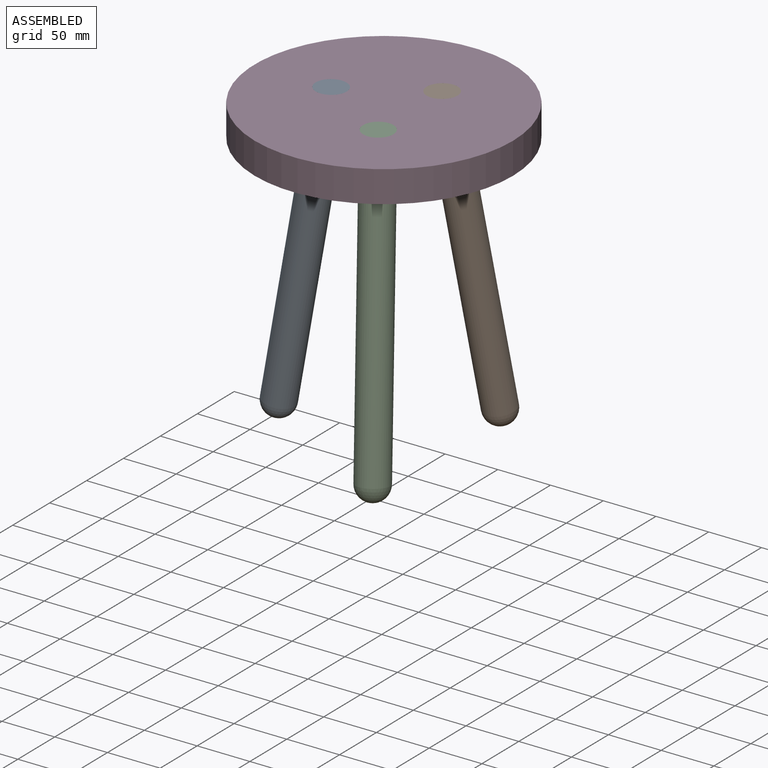
[diagram: assembled view]
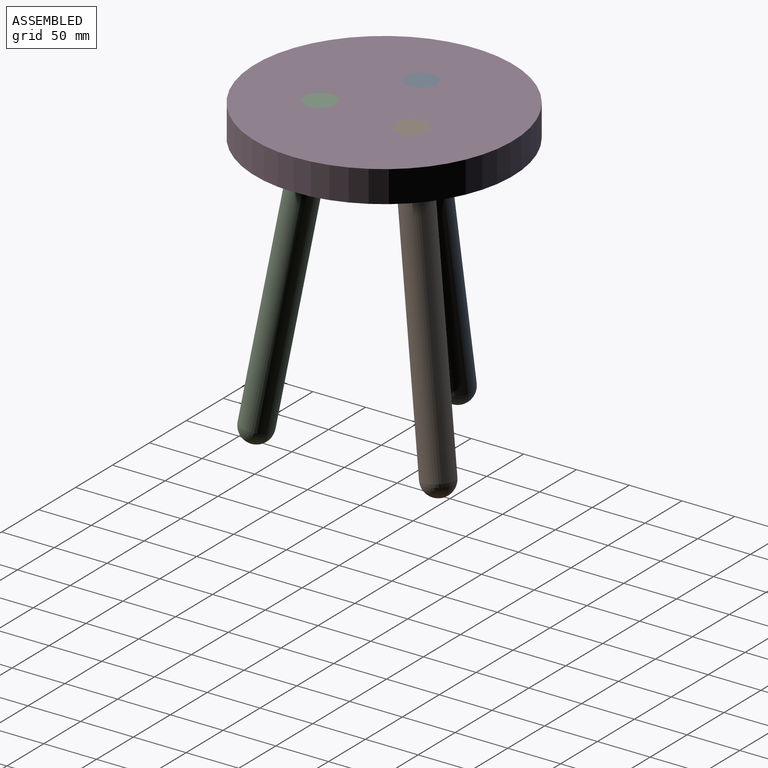
[diagram: assembled view, second angle]
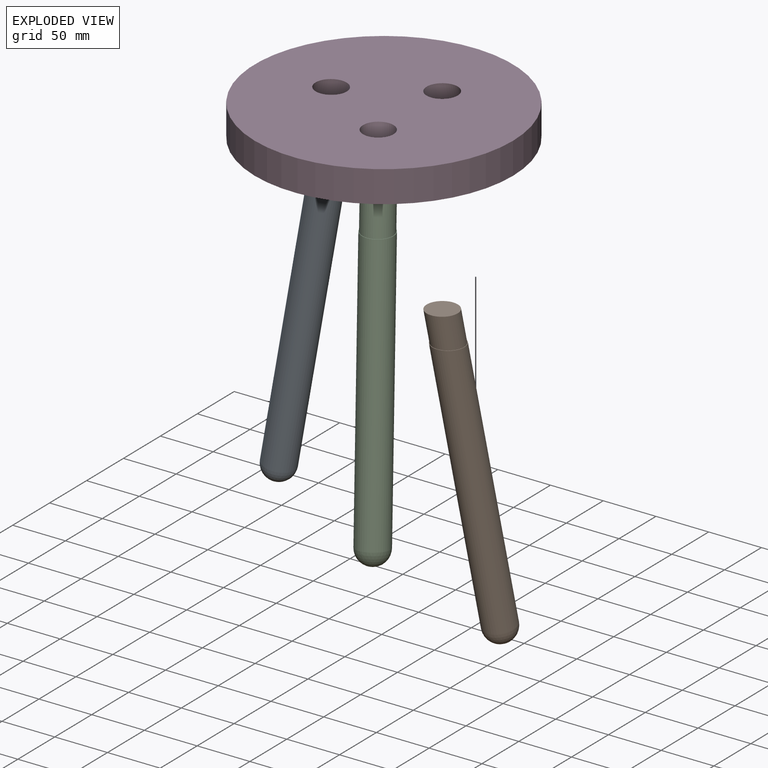
[diagram: exploded view]
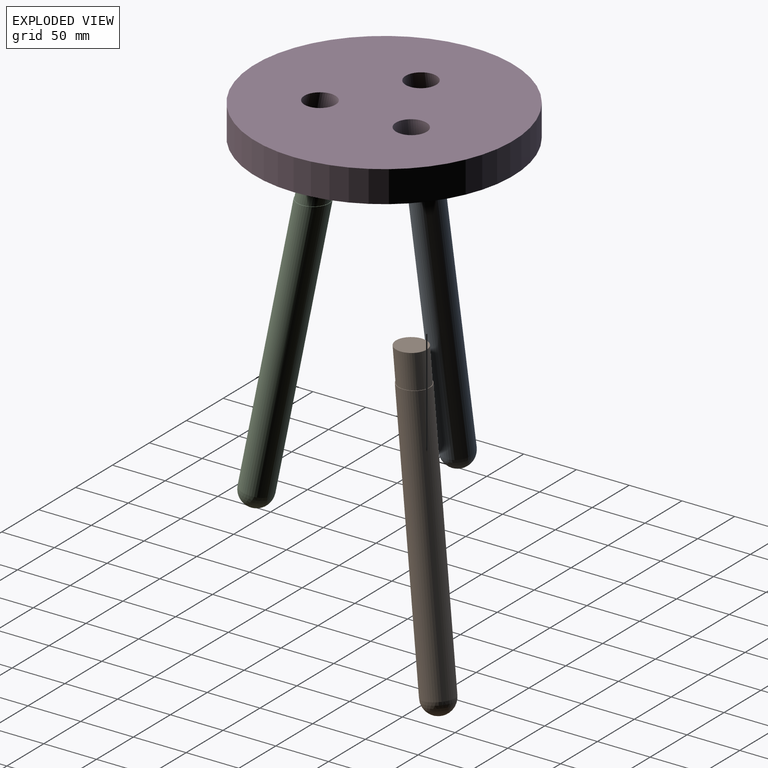
[diagram: exploded view, second angle]
ASSEMBLY  parts=4 mates=3
PART A: 5 faces, bbox 79.2x30x300.7 mm
  f0: cylinder r=14.5mm len=40.11mm, axis (0.17,0,0.98), area 2775.3mm2, adj f1,f2
  f1: plane 29.45x29mm, normal (0,0,1), area 670.7mm2, adj f0
  f2: plane 30.46x30mm, normal (0,0,1), area 47.1mm2, adj f0,f3
  f3: cylinder r=15mm len=258.49mm, axis (0.17,0,0.98), area 23989.6mm2, adj f2,f4
  f4: sphere r=15mm, area 1413.7mm2, adj f3
PART B: 5 faces, bbox 54.4x72.6x300.7 mm
  f0: cylinder r=14.5mm len=40.11mm, axis (-0.09,-0.15,0.98), area 2775.3mm2, adj f1,f2
  f1: plane 29.34x29.11mm, normal (0,0,1), area 670.7mm2, adj f0
  f2: plane 30.35x30.12mm, normal (0,0,1), area 47.1mm2, adj f0,f3
  f3: cylinder r=15mm len=258.49mm, axis (-0.09,-0.15,0.98), area 23989.6mm2, adj f2,f4
  f4: sphere r=15mm, area 1413.7mm2, adj f3
PART C: 5 faces, bbox 54.4x72.6x300.7 mm
  f0: cylinder r=14.5mm len=40.11mm, axis (-0.09,0.15,0.98), area 2775.3mm2, adj f1,f2
  f1: plane 29.34x29.11mm, normal (0,0,1), area 670.7mm2, adj f0
  f2: plane 30.35x30.12mm, normal (0,0,1), area 47.1mm2, adj f0,f3
  f3: cylinder r=15mm len=258.49mm, axis (-0.09,0.15,0.98), area 23989.6mm2, adj f2,f4
  f4: sphere r=15mm, area 1413.7mm2, adj f3
PART D: 6 faces, bbox 245x245x40.1 mm
  f0: cylinder r=122.5mm len=245mm, axis (0,0,1), area 23090.7mm2, adj f1,f2
  f1: plane 245x245mm, normal (0,0,-1), area 45131.4mm2, adj f0,f3,f4,f5
  f2: plane 245x245mm, normal (0,0,1), area 45131.4mm2, adj f0,f3,f4,f5
  f3: cylinder r=14.5mm len=40.11mm, axis (0.17,0,0.98), area 2775.3mm2, adj f1,f2
  f4: cylinder r=14.5mm len=40.11mm, axis (-0.09,-0.15,0.98), area 2775.3mm2, adj f1,f2
  f5: cylinder r=14.5mm len=40.11mm, axis (-0.09,0.15,0.98), area 2775.3mm2, adj f1,f2
PLACE A t=(-57.61,-57.61,-10.12)mm
PLACE B t=(-57.61,-57.61,-10.12)mm
PLACE C t=(-57.61,-57.61,-10.12)mm
PLACE D t=(-57.61,-57.61,-10.12)mm
MATE fastened C.f1 <-> D.f2  axis (0,0,1) through (-32.61,-100.91,-10.12)mm
MATE fastened A.f1 <-> D.f2  axis (0,0,1) through (-107.61,-57.61,-10.12)mm
MATE fastened B.f1 <-> D.f2  axis (0,0,1) through (-32.61,-14.31,-10.12)mm
